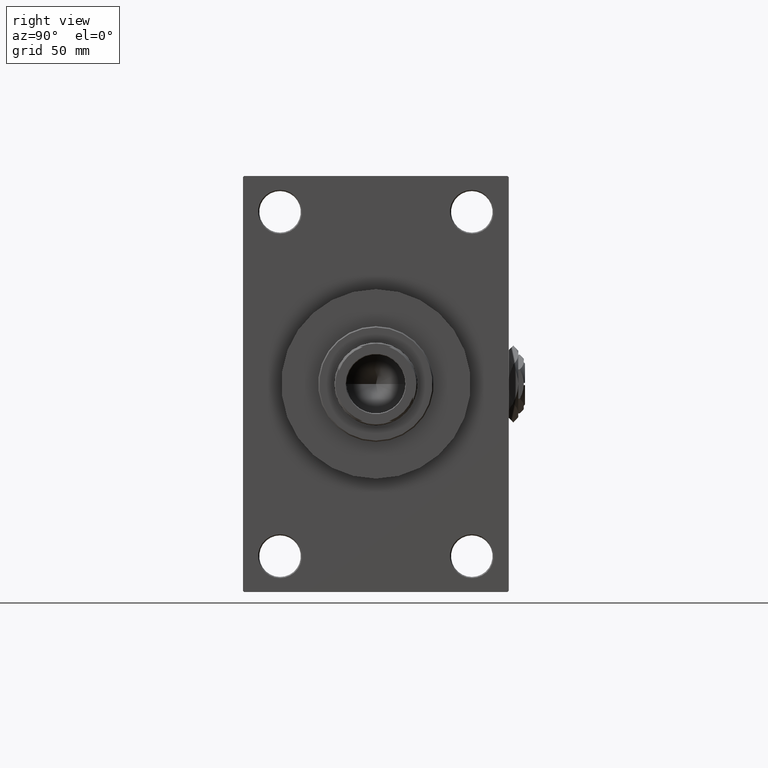
[diagram: clean part render]
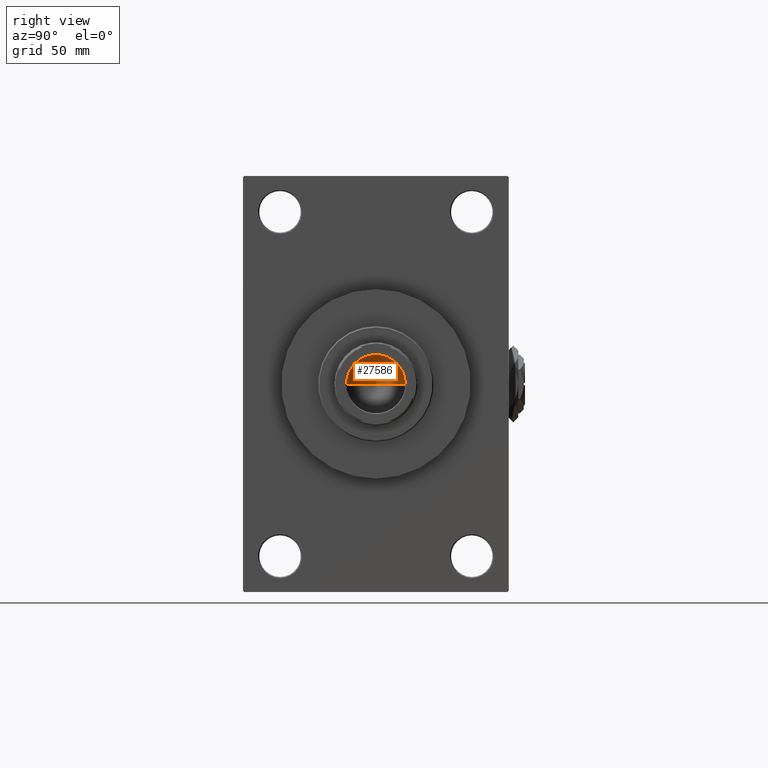
[diagram: same view with one face highlighted and labeled with its STEP entity id]
A machine part, right view. The second image highlights one B-rep face of the part: STEP entity #27586.
In plain terms, the highlighted conical surface has half-angle 59 deg.
Its self-contained STEP definition (entity closure, byte-faithful):
#250 = ORIENTED_EDGE ( 'NONE', *, *, #48481, .T. ) ;
#1005 = DIRECTION ( 'NONE',  ( 1.000000000000000000, 0.000000000000000000, 0.000000000000000000 ) ) ;
#2570 = AXIS2_PLACEMENT_3D ( 'NONE', #3136, #17438, #13680 ) ;
#3136 = CARTESIAN_POINT ( 'NONE',  ( 0.000000000000000000, 0.000000000000000000, 121.0000000000000142 ) ) ;
#3851 = FACE_OUTER_BOUND ( 'NONE', #36483, .T. ) ;
#7554 = CARTESIAN_POINT ( 'NONE',  ( -12.74999999999998934, 1.561424668912873928E-15, 121.0000000000000142 ) ) ;
#7999 = ORIENTED_EDGE ( 'NONE', *, *, #21132, .F. ) ;
#9242 = CARTESIAN_POINT ( 'NONE',  ( 0.000000000000000000, 0.000000000000000000, 121.0000000000000142 ) ) ;
#10429 = ORIENTED_EDGE ( 'NONE', *, *, #30168, .T. ) ;
#10733 = CARTESIAN_POINT ( 'NONE',  ( -1.410643066818227497E-14, 0.000000000000000000, 113.3390271073986071 ) ) ;
#12760 = CARTESIAN_POINT ( 'NONE',  ( -12.74999999999998934, 1.561424668912873928E-15, 121.0000000000000142 ) ) ;
#13680 = DIRECTION ( 'NONE',  ( 1.000000000000000000, 0.000000000000000000, 0.000000000000000000 ) ) ;
#17438 = DIRECTION ( 'NONE',  ( -0.000000000000000000, -0.000000000000000000, 1.000000000000000000 ) ) ;
#21132 = EDGE_CURVE ( 'NONE', #24241, #48047, #46043, .T. ) ;
#22955 = VERTEX_POINT ( 'NONE', #7554 ) ;
#23403 = AXIS2_PLACEMENT_3D ( 'NONE', #9242, #47513, #1005 ) ;
#23838 = CARTESIAN_POINT ( 'NONE',  ( 12.74999999999998934, 0.000000000000000000, 121.0000000000000142 ) ) ;
#24241 = VERTEX_POINT ( 'NONE', #10733 ) ;
#26967 = VECTOR ( 'NONE', #32242, 1000.000000000000000 ) ;
#27586 = ADVANCED_FACE ( 'NONE', ( #3851 ), #39381, .F. ) ;
#30168 = EDGE_CURVE ( 'NONE', #22955, #48047, #36961, .T. ) ;
#30527 = DIRECTION ( 'NONE',  ( 0.8571673007021117785, 0.000000000000000000, 0.5150380749100550437 ) ) ;
#31142 = VECTOR ( 'NONE', #30527, 1000.000000000000000 ) ;
#31499 = LINE ( 'NONE', #12760, #26967 ) ;
#32242 = DIRECTION ( 'NONE',  ( -0.8571673007021117785, 1.049727191138617956E-16, 0.5150380749100550437 ) ) ;
#36483 = EDGE_LOOP ( 'NONE', ( #7999, #250, #10429 ) ) ;
#36961 = CIRCLE ( 'NONE', #23403, 12.74999999999998934 ) ;
#39381 = CONICAL_SURFACE ( 'NONE', #2570, 12.74999999999998934, 1.029744258676653423 ) ;
#46043 = LINE ( 'NONE', #49312, #31142 ) ;
#47513 = DIRECTION ( 'NONE',  ( -0.000000000000000000, -0.000000000000000000, 1.000000000000000000 ) ) ;
#48047 = VERTEX_POINT ( 'NONE', #23838 ) ;
#48481 = EDGE_CURVE ( 'NONE', #24241, #22955, #31499, .T. ) ;
#49312 = CARTESIAN_POINT ( 'NONE',  ( 12.74999999999998934, 0.000000000000000000, 121.0000000000000142 ) ) ;